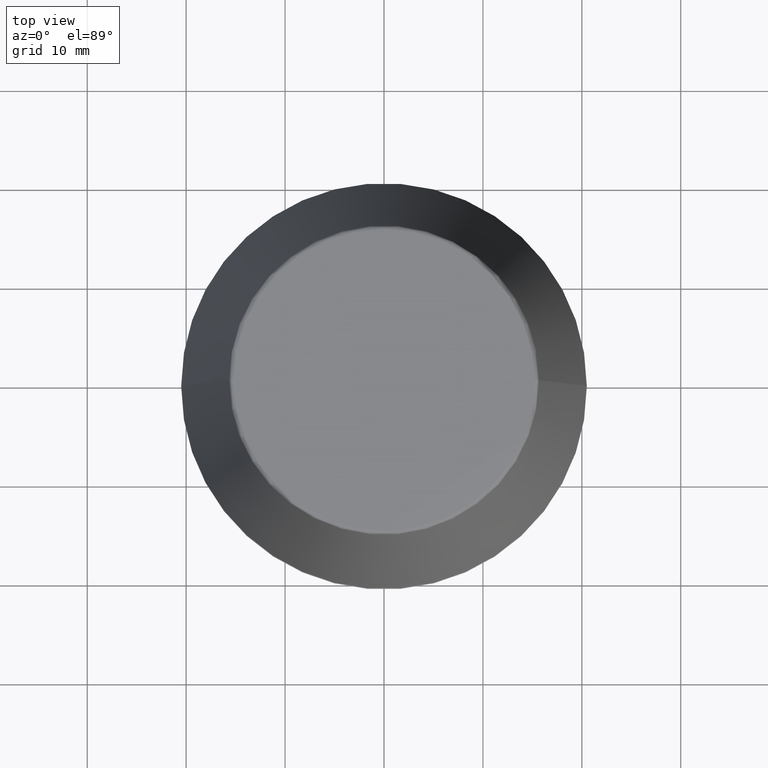
[diagram: clean part render]
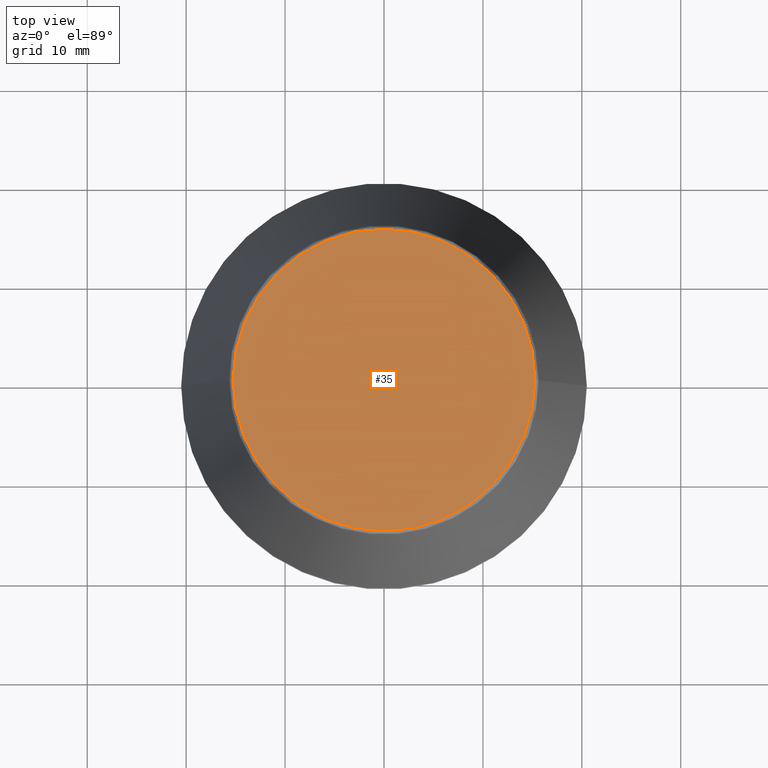
[diagram: same view with one face highlighted and labeled with its STEP entity id]
A machine part, top view. The second image highlights one B-rep face of the part: STEP entity #35.
In plain terms, the highlighted planar face has unit normal (0, 0, -1).
Its self-contained STEP definition (entity closure, byte-faithful):
#2 = DIRECTION ( 'NONE',  ( -0.0000000000000000000, -0.0000000000000000000, 1.000000000000000000 ) ) ;
#30 = DIRECTION ( 'NONE',  ( 1.000000000000000000, 0.0000000000000000000, 0.0000000000000000000 ) ) ;
#35 = ADVANCED_FACE ( 'NONE', ( #277 ), #63, .F. ) ;
#40 = DIRECTION ( 'NONE',  ( 0.0000000000000000000, 0.0000000000000000000, -1.000000000000000000 ) ) ;
#46 = CARTESIAN_POINT ( 'NONE',  ( 0.0000000000000000000, 0.0000000000000000000, 46.00000000000000000 ) ) ;
#49 = VERTEX_POINT ( 'NONE', #203 ) ;
#62 = DIRECTION ( 'NONE',  ( -1.000000000000000000, 0.0000000000000000000, -0.0000000000000000000 ) ) ;
#63 = PLANE ( 'NONE',  #64 ) ;
#64 = AXIS2_PLACEMENT_3D ( 'NONE', #206, #40, #62 ) ;
#126 = DIRECTION ( 'NONE',  ( -0.0000000000000000000, -0.0000000000000000000, 1.000000000000000000 ) ) ;
#131 = AXIS2_PLACEMENT_3D ( 'NONE', #224, #2, #30 ) ;
#168 = ORIENTED_EDGE ( 'NONE', *, *, #321, .T. ) ;
#203 = CARTESIAN_POINT ( 'NONE',  ( -15.24773554530077600, 1.891563625393435400E-015, 46.00000000000000000 ) ) ;
#206 = CARTESIAN_POINT ( 'NONE',  ( 0.0000000000000000000, 15.24773554530077600, 46.00000000000000000 ) ) ;
#218 = AXIS2_PLACEMENT_3D ( 'NONE', #46, #126, #255 ) ;
#224 = CARTESIAN_POINT ( 'NONE',  ( 0.0000000000000000000, 0.0000000000000000000, 46.00000000000000000 ) ) ;
#241 = ORIENTED_EDGE ( 'NONE', *, *, #385, .T. ) ;
#250 = VERTEX_POINT ( 'NONE', #266 ) ;
#255 = DIRECTION ( 'NONE',  ( 1.000000000000000000, 0.0000000000000000000, 0.0000000000000000000 ) ) ;
#263 = EDGE_LOOP ( 'NONE', ( #168, #241 ) ) ;
#266 = CARTESIAN_POINT ( 'NONE',  ( 15.24773554530077600, 0.0000000000000000000, 46.00000000000000000 ) ) ;
#277 = FACE_OUTER_BOUND ( 'NONE', #263, .T. ) ;
#311 = CIRCLE ( 'NONE', #218, 15.24773554530077600 ) ;
#321 = EDGE_CURVE ( 'NONE', #250, #49, #311, .T. ) ;
#345 = CIRCLE ( 'NONE', #131, 15.24773554530077600 ) ;
#385 = EDGE_CURVE ( 'NONE', #49, #250, #345, .T. ) ;